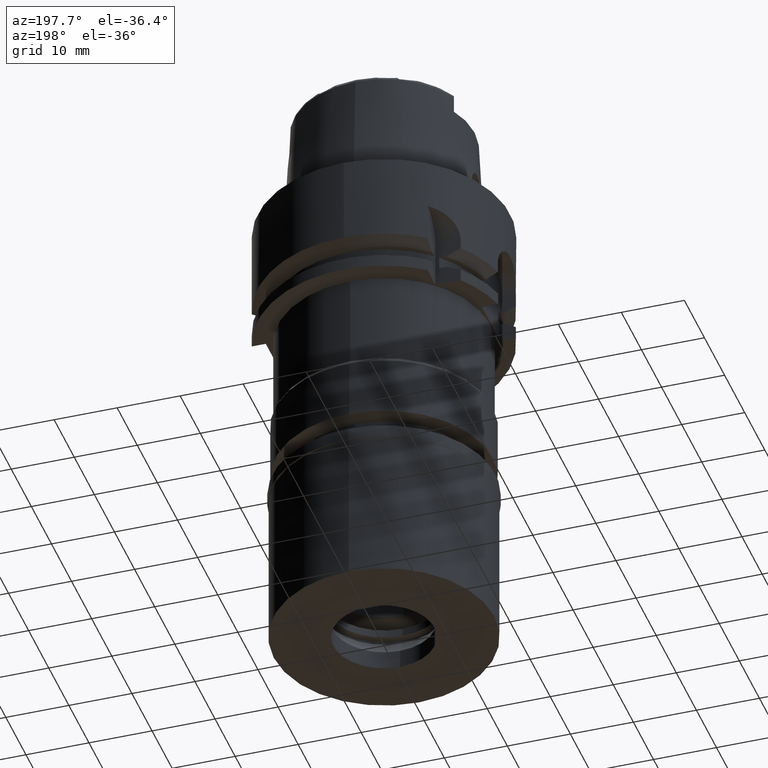
[diagram: clean part render]
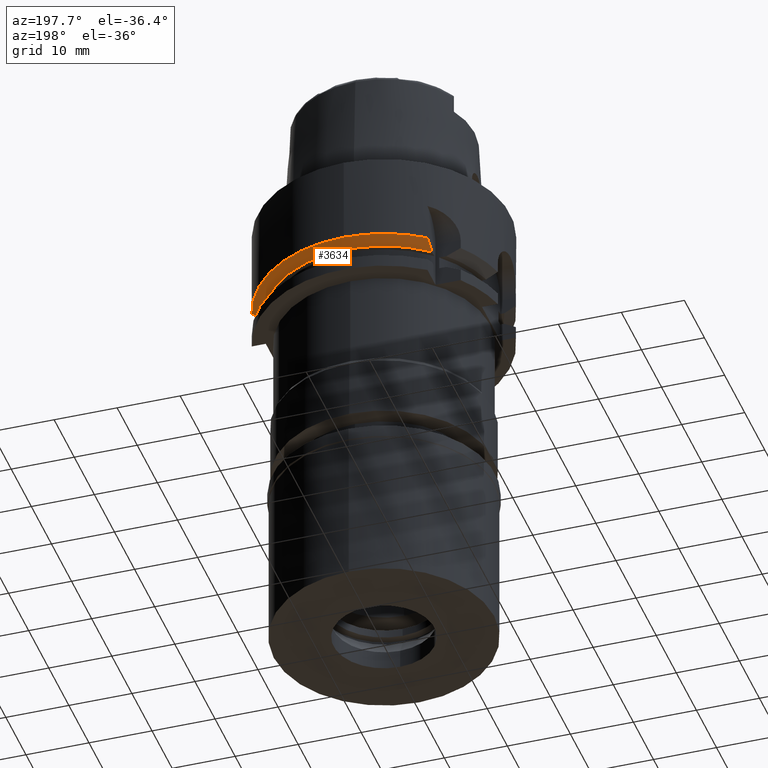
[diagram: same view with one face highlighted and labeled with its STEP entity id]
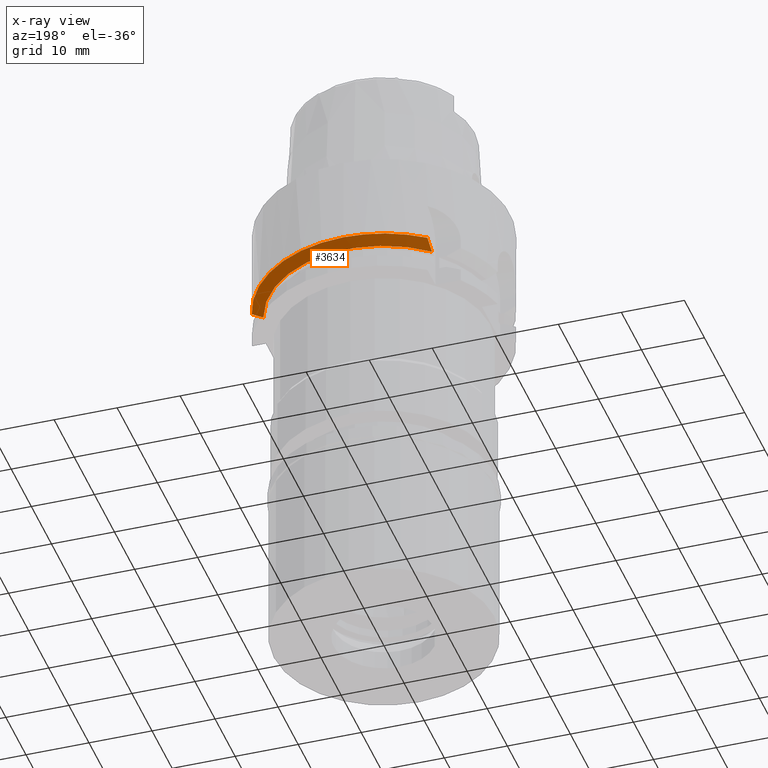
[diagram: x-ray of the same camera — body ghosted, the highlighted face saturated]
A machine part, auxiliary view. The second image highlights one B-rep face of the part: STEP entity #3634.
The next image is the same camera in x-ray: the body ghosted, the highlighted face saturated — about 0% of this face is hidden behind the body in this view.
In plain terms, the highlighted conical surface has half-angle 60 deg.
Its self-contained STEP definition (entity closure, byte-faithful):
#25 = CARTESIAN_POINT ( 'NONE',  ( -12.00000837001000065, 15.99999372247999929, -13.97924226165999961 ) ) ;
#55 = VERTEX_POINT ( 'NONE', #3265 ) ;
#199 = EDGE_CURVE ( 'NONE', #2364, #4677, #4645, .T. ) ;
#407 = CIRCLE ( 'NONE', #1898, 18.23205080757000474 ) ;
#455 = EDGE_LOOP ( 'NONE', ( #845, #4437, #2825, #3360, #3859 ) ) ;
#638 = CARTESIAN_POINT ( 'NONE',  ( -12.00001670505966622, 15.21251893774939390, -14.34299005094400137 ) ) ;
#679 = CARTESIAN_POINT ( 'NONE',  ( 0.0000000000000000000, 0.0000000000000000000, -15.00000000000000000 ) ) ;
#845 = ORIENTED_EDGE ( 'NONE', *, *, #5246, .F. ) ;
#863 = CARTESIAN_POINT ( 'NONE',  ( 18.60110478346999585, 5.499999794670999087, -14.32746073594999991 ) ) ;
#1181 = VERTEX_POINT ( 'NONE', #25 ) ;
#1397 = CARTESIAN_POINT ( 'NONE',  ( 0.0000000000000000000, 0.0000000000000000000, -13.97927405783999966 ) ) ;
#1416 = CIRCLE ( 'NONE', #1842, 20.00000000000000000 ) ;
#1486 = EDGE_CURVE ( 'NONE', #2364, #1966, #407, .T. ) ;
#1633 = DIRECTION ( 'NONE',  ( 0.0000000000000000000, 0.0000000000000000000, 1.000000000000000000 ) ) ;
#1718 = CARTESIAN_POINT ( 'NONE',  ( 17.38268112151000011, 5.500000148836999614, -15.00000000000000000 ) ) ;
#1842 = AXIS2_PLACEMENT_3D ( 'NONE', #3358, #1633, #4217 ) ;
#1898 = AXIS2_PLACEMENT_3D ( 'NONE', #679, #3129, #2335 ) ;
#1966 = VERTEX_POINT ( 'NONE', #2076 ) ;
#2076 = CARTESIAN_POINT ( 'NONE',  ( -12.00000248632000144, 13.72614523126000030, -15.00000000000000000 ) ) ;
#2122 = CARTESIAN_POINT ( 'NONE',  ( 17.58251679178999893, 5.500000148836999614, -14.88999974943000026 ) ) ;
#2265 = DIRECTION ( 'NONE',  ( 0.0000000000000000000, 0.0000000000000000000, 1.000000000000000000 ) ) ;
#2295 = CARTESIAN_POINT ( 'NONE',  ( -12.00000837001000065, 15.99999372247999929, -13.97924226165999961 ) ) ;
#2335 = DIRECTION ( 'NONE',  ( 0.9534134927694348782, 0.3016665573198109573, 0.0000000000000000000 ) ) ;
#2339 = CONICAL_SURFACE ( 'NONE', #3655, 19.11602540378000015, 1.047197551196400456 ) ;
#2364 = VERTEX_POINT ( 'NONE', #4212 ) ;
#2774 = DIRECTION ( 'NONE',  ( 0.0000000000000000000, 0.0000000000000000000, 1.000000000000000000 ) ) ;
#2789 = CIRCLE ( 'NONE', #4460, 20.00000000000000355 ) ;
#2825 = ORIENTED_EDGE ( 'NONE', *, *, #199, .F. ) ;
#2983 = CARTESIAN_POINT ( 'NONE',  ( 17.98571038326999627, 5.499999994877999399, -14.66771641723000030 ) ) ;
#3129 = DIRECTION ( 'NONE',  ( 0.0000000000000000000, 0.0000000000000000000, 1.000000000000000000 ) ) ;
#3185 = CARTESIAN_POINT ( 'NONE',  ( 0.0000000000000000000, 0.0000000000000000000, -14.48963702891999894 ) ) ;
#3265 = CARTESIAN_POINT ( 'NONE',  ( 0.0000000000000000000, 20.00000000000000000, -13.97927405783999966 ) ) ;
#3358 = CARTESIAN_POINT ( 'NONE',  ( 0.0000000000000000000, 0.0000000000000000000, -13.97927405783999966 ) ) ;
#3360 = ORIENTED_EDGE ( 'NONE', *, *, #1486, .T. ) ;
#3609 = EDGE_CURVE ( 'NONE', #1966, #1181, #4488, .T. ) ;
#3634 = ADVANCED_FACE ( 'NONE', ( #4046 ), #2339, .T. ) ;
#3655 = AXIS2_PLACEMENT_3D ( 'NONE', #3185, #2774, #4861 ) ;
#3795 = CARTESIAN_POINT ( 'NONE',  ( 19.22888438501999531, 5.500000482516000488, -13.97927001444999817 ) ) ;
#3859 = ORIENTED_EDGE ( 'NONE', *, *, #3609, .T. ) ;
#4046 = FACE_OUTER_BOUND ( 'NONE', #455, .T. ) ;
#4212 = CARTESIAN_POINT ( 'NONE',  ( 17.38268112151000011, 5.500000148836999614, -15.00000000000000000 ) ) ;
#4217 = DIRECTION ( 'NONE',  ( 0.0000000000000000000, 1.000000000000000000, 0.0000000000000000000 ) ) ;
#4386 = CARTESIAN_POINT ( 'NONE',  ( -12.00000501549136622, 14.45491865635034756, -14.68323687454174120 ) ) ;
#4437 = ORIENTED_EDGE ( 'NONE', *, *, #5392, .F. ) ;
#4460 = AXIS2_PLACEMENT_3D ( 'NONE', #1397, #2265, #4817 ) ;
#4488 = B_SPLINE_CURVE_WITH_KNOTS ( 'NONE', 3,
 ( #4796, #4386, #638, #2295 ),
 .UNSPECIFIED., .F., .F.,
 ( 4, 4 ),
 ( 0.0000000000000000000, 1.000000000000000000 ),
 .UNSPECIFIED. ) ;
#4645 = B_SPLINE_CURVE_WITH_KNOTS ( 'NONE', 3,
 ( #1718, #2122, #2983, #863, #5114, #3795 ),
 .UNSPECIFIED., .F., .F.,
 ( 4, 1, 1, 4 ),
 ( 0.0000000000000000000, 0.3333333333333000081, 0.6666666666667000474, 1.000000000000000000 ),
 .UNSPECIFIED. ) ;
#4651 = CARTESIAN_POINT ( 'NONE',  ( 19.22888438501999531, 5.500000482516000488, -13.97927001444999817 ) ) ;
#4677 = VERTEX_POINT ( 'NONE', #4651 ) ;
#4796 = CARTESIAN_POINT ( 'NONE',  ( -12.00000248632000144, 13.72614523126000030, -15.00000000000000000 ) ) ;
#4817 = DIRECTION ( 'NONE',  ( 0.9614442261514726251, 0.2749999999999924727, 0.0000000000000000000 ) ) ;
#4861 = DIRECTION ( 'NONE',  ( 0.0000000000000000000, 1.000000000000000000, 0.0000000000000000000 ) ) ;
#5114 = CARTESIAN_POINT ( 'NONE',  ( 19.01843999839999810, 5.500000482516000488, -14.09608560392000065 ) ) ;
#5246 = EDGE_CURVE ( 'NONE', #55, #1181, #1416, .T. ) ;
#5392 = EDGE_CURVE ( 'NONE', #4677, #55, #2789, .T. ) ;